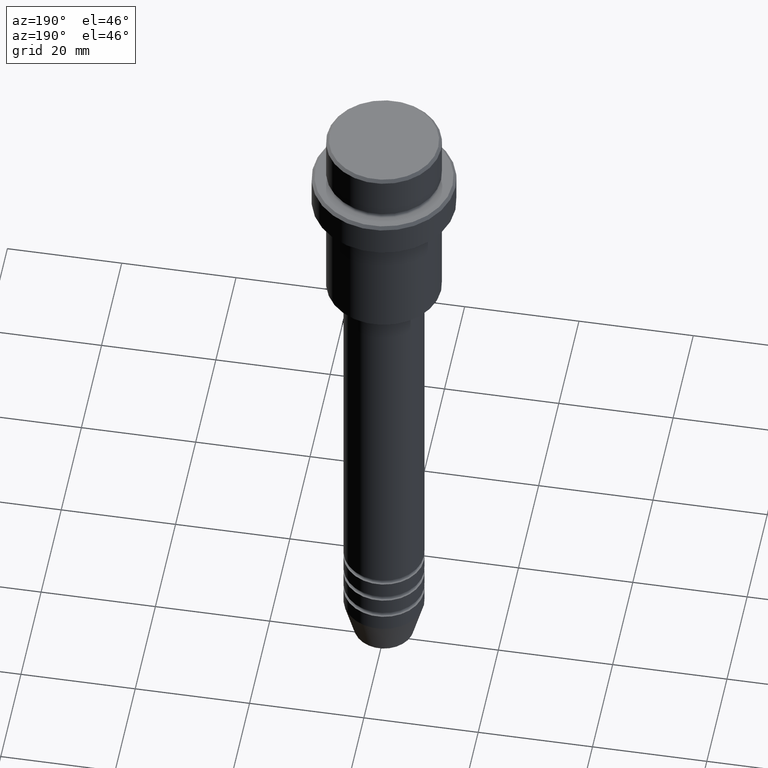
[diagram: clean part render]
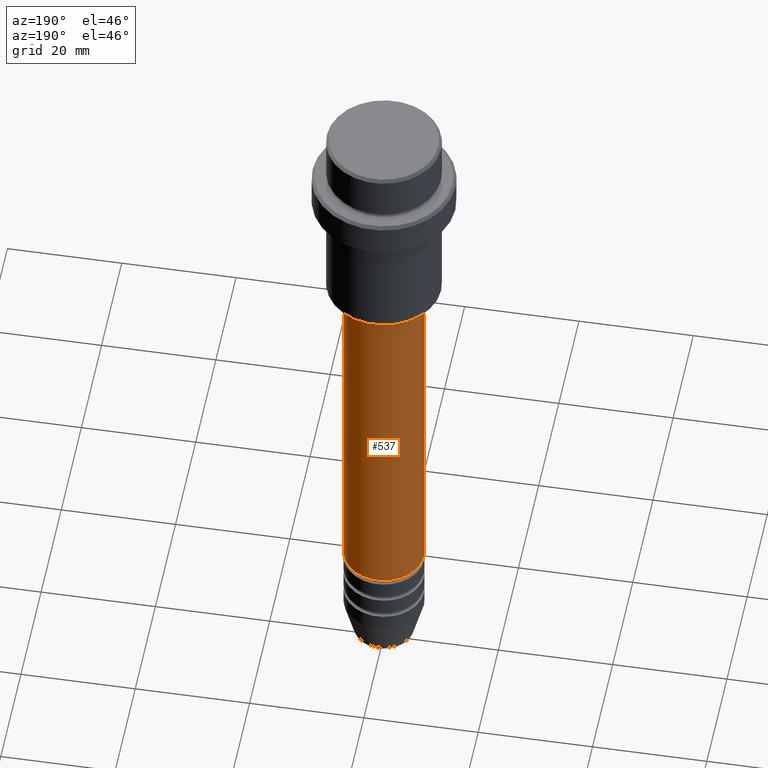
[diagram: same view with one face highlighted and labeled with its STEP entity id]
A machine part, auxiliary view. The second image highlights one B-rep face of the part: STEP entity #537.
In plain terms, the highlighted cylindrical surface (partial cylindrical patch) has radius 7 mm, axis along (-0, -0, 1).
Its self-contained STEP definition (entity closure, byte-faithful):
#10 = CARTESIAN_POINT ( 'NONE',  ( 0.000000000000000000, 0.000000000000000000, -101.9999999999999005 ) ) ;
#45 = VERTEX_POINT ( 'NONE', #192 ) ;
#173 = VERTEX_POINT ( 'NONE', #215 ) ;
#175 = VERTEX_POINT ( 'NONE', #437 ) ;
#192 = CARTESIAN_POINT ( 'NONE',  ( 7.000000000000000000, 0.000000000000000000, -37.00000000000002132 ) ) ;
#215 = CARTESIAN_POINT ( 'NONE',  ( -7.000000000000000000, 8.572527594031473190E-16, -101.9999999999999005 ) ) ;
#226 = DIRECTION ( 'NONE',  ( 1.000000000000000000, 0.000000000000000000, 0.000000000000000000 ) ) ;
#231 = EDGE_CURVE ( 'NONE', #173, #634, #547, .T. ) ;
#266 = EDGE_CURVE ( 'NONE', #175, #173, #329, .T. ) ;
#274 = ORIENTED_EDGE ( 'NONE', *, *, #1185, .F. ) ;
#304 = AXIS2_PLACEMENT_3D ( 'NONE', #10, #755, #1297 ) ;
#329 = CIRCLE ( 'NONE', #304, 7.000000000000000000 ) ;
#332 = VECTOR ( 'NONE', #949, 1000.000000000000000 ) ;
#390 = DIRECTION ( 'NONE',  ( -0.000000000000000000, -0.000000000000000000, 1.000000000000000000 ) ) ;
#401 = CARTESIAN_POINT ( 'NONE',  ( 7.000000000000000000, 0.000000000000000000, 0.000000000000000000 ) ) ;
#437 = CARTESIAN_POINT ( 'NONE',  ( 7.000000000000000000, 0.000000000000000000, -101.9999999999999005 ) ) ;
#495 = CARTESIAN_POINT ( 'NONE',  ( 0.000000000000000000, 0.000000000000000000, -37.00000000000002132 ) ) ;
#524 = LINE ( 'NONE', #401, #332 ) ;
#527 = CARTESIAN_POINT ( 'NONE',  ( 0.000000000000000000, 0.000000000000000000, 0.000000000000000000 ) ) ;
#537 = ADVANCED_FACE ( 'NONE', ( #1274 ), #1066, .T. ) ;
#547 = LINE ( 'NONE', #1104, #981 ) ;
#576 = ORIENTED_EDGE ( 'NONE', *, *, #266, .T. ) ;
#634 = VERTEX_POINT ( 'NONE', #1243 ) ;
#719 = AXIS2_PLACEMENT_3D ( 'NONE', #495, #390, #927 ) ;
#728 = ORIENTED_EDGE ( 'NONE', *, *, #231, .T. ) ;
#746 = ORIENTED_EDGE ( 'NONE', *, *, #873, .F. ) ;
#755 = DIRECTION ( 'NONE',  ( -0.000000000000000000, -0.000000000000000000, 1.000000000000000000 ) ) ;
#848 = AXIS2_PLACEMENT_3D ( 'NONE', #527, #1404, #226 ) ;
#873 = EDGE_CURVE ( 'NONE', #175, #45, #524, .T. ) ;
#878 = CIRCLE ( 'NONE', #719, 7.000000000000000000 ) ;
#927 = DIRECTION ( 'NONE',  ( 1.000000000000000000, 0.000000000000000000, 0.000000000000000000 ) ) ;
#949 = DIRECTION ( 'NONE',  ( -0.000000000000000000, -0.000000000000000000, 1.000000000000000000 ) ) ;
#981 = VECTOR ( 'NONE', #1110, 1000.000000000000000 ) ;
#1009 = EDGE_LOOP ( 'NONE', ( #576, #728, #274, #746 ) ) ;
#1066 = CYLINDRICAL_SURFACE ( 'NONE', #848, 7.000000000000000000 ) ;
#1104 = CARTESIAN_POINT ( 'NONE',  ( -7.000000000000000000, 8.572527594031473190E-16, 0.000000000000000000 ) ) ;
#1110 = DIRECTION ( 'NONE',  ( -0.000000000000000000, -0.000000000000000000, 1.000000000000000000 ) ) ;
#1185 = EDGE_CURVE ( 'NONE', #45, #634, #878, .T. ) ;
#1243 = CARTESIAN_POINT ( 'NONE',  ( -7.000000000000000000, 8.572527594031473190E-16, -37.00000000000002132 ) ) ;
#1274 = FACE_OUTER_BOUND ( 'NONE', #1009, .T. ) ;
#1297 = DIRECTION ( 'NONE',  ( 1.000000000000000000, 0.000000000000000000, 0.000000000000000000 ) ) ;
#1404 = DIRECTION ( 'NONE',  ( -0.000000000000000000, -0.000000000000000000, 1.000000000000000000 ) ) ;